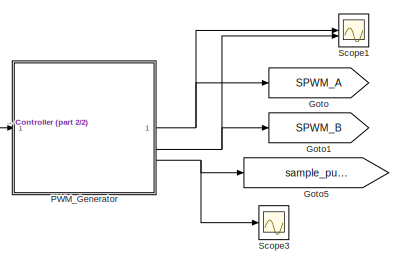
[diagram: root canvas - part 1/2, top right region]
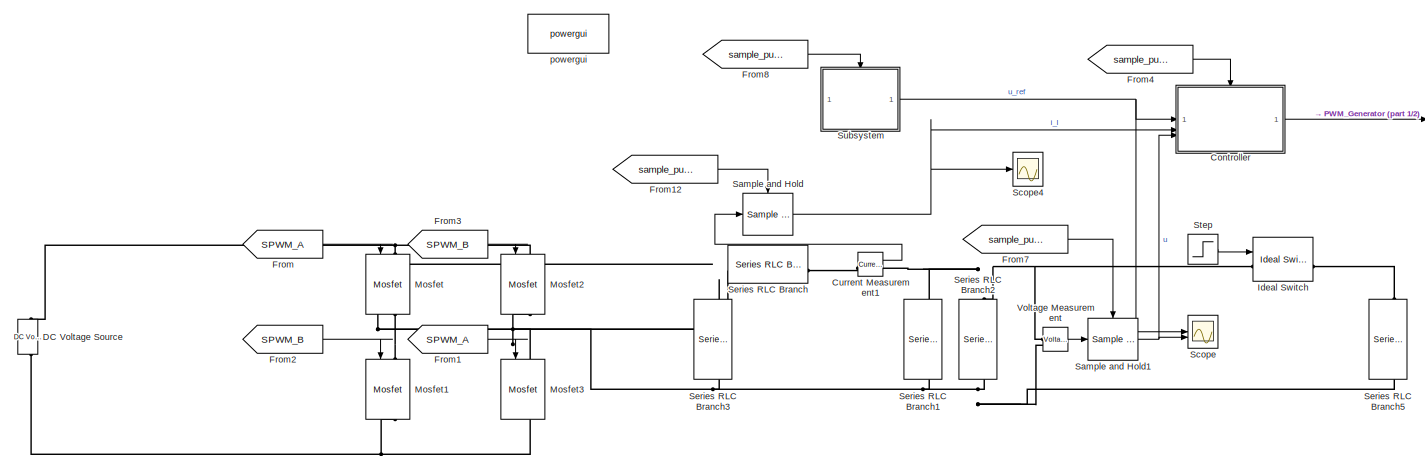
[diagram: root canvas - part 2/2, most of the canvas]
MODEL slx_2c31b23fbc62
KIND model
CONFIG AbsTol = auto
CONFIG EnableMultiTasking = off
CONFIG FixedStep = 1e-6
CONFIG MaxStep = 1e-8
CONFIG MinStep = auto
CONFIG RelTol = 1e-7
CONFIG SampleTimeConstraint = Unconstrained
CONFIG SolverName = ode23tb
CONFIG StartTime = 0.0
CONFIG StopTime = 0.2
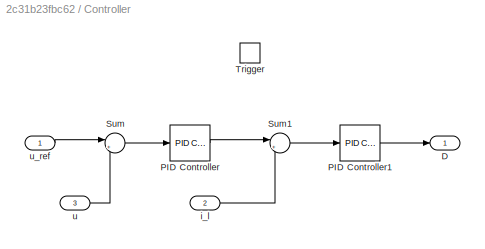
BLOCK [SubSystem] Controller
BLOCK [Outport] Controller/D
BLOCK [Reference] Controller/PID Controller  REF=slpidlib/PID Controller
  LibrarySourceBlock = simulink/Continuous/PID Controller
  SourceBlock = slpidlib/PID Controller
  SourceType = PID 1dof
BLOCK [Reference] Controller/PID Controller1  REF=slpidlib/PID Controller
  LibrarySourceBlock = simulink/Continuous/PID Controller
  SourceBlock = slpidlib/PID Controller
  SourceType = PID 1dof
BLOCK [Sum] Controller/Sum
  Inputs = |+-
BLOCK [Sum] Controller/Sum1
  Inputs = |+-
BLOCK [TriggerPort] Controller/Trigger
  StatesWhenEnabling = held
  VariantControl = (inherit)
BLOCK [Inport] Controller/i_l
  Port = 2
BLOCK [Inport] Controller/u
  Port = 3
BLOCK [Inport] Controller/u_ref
BLOCK [Reference] Current Measurement1  REF=spsCurrentMeasurementLib/Current Measurement
  LibrarySourceBlock = sps_lib/Sensors and Measurements/Current Measurement
  SourceBlock = spsCurrentMeasurementLib/Current Measurement
  SourceType = Current Measurement
  UserDataPersistent = on
BLOCK [Reference] DC Voltage Source  REF=spsDCVoltageSourceLib/DC Voltage Source
  LibrarySourceBlock = sps_lib/Sources/DC Voltage Source
  SourceBlock = spsDCVoltageSourceLib/DC Voltage Source
  SourceType = DC Voltage Source
BLOCK [From] From
  GotoTag = SPWM_A
BLOCK [From] From1
  GotoTag = SPWM_A
BLOCK [From] From12
  GotoTag = sample_pulse
BLOCK [From] From2
  GotoTag = SPWM_B
BLOCK [From] From3
  GotoTag = SPWM_B
BLOCK [From] From4
  GotoTag = sample_pulse
BLOCK [From] From7
  GotoTag = sample_pulse
BLOCK [From] From8
  GotoTag = sample_pulse
BLOCK [Goto] Goto
  GotoTag = SPWM_A
BLOCK [Goto] Goto1
  GotoTag = SPWM_B
BLOCK [Goto] Goto5
  GotoTag = sample_pulse
BLOCK [Reference] Ideal Switch  REF=spsIdealSwitchLib/Ideal Switch
  LibrarySourceBlock = sps_lib/Power Electronics/Ideal Switch
  SourceBlock = spsIdealSwitchLib/Ideal Switch
  SourceType = Ideal Switch
BLOCK [Reference] Mosfet  REF=spsMosfetLib/Mosfet
  LibrarySourceBlock = sps_lib/Power Electronics/Mosfet
  NameLocation = left
  SourceBlock = spsMosfetLib/Mosfet
  SourceType = Mosfet
BLOCK [Reference] Mosfet1  REF=spsMosfetLib/Mosfet
  LibrarySourceBlock = sps_lib/Power Electronics/Mosfet
  NameLocation = left
  SourceBlock = spsMosfetLib/Mosfet
  SourceType = Mosfet
BLOCK [Reference] Mosfet2  REF=spsMosfetLib/Mosfet
  LibrarySourceBlock = sps_lib/Power Electronics/Mosfet
  NameLocation = left
  SourceBlock = spsMosfetLib/Mosfet
  SourceType = Mosfet
BLOCK [Reference] Mosfet3  REF=spsMosfetLib/Mosfet
  LibrarySourceBlock = sps_lib/Power Electronics/Mosfet
  NameLocation = left
  SourceBlock = spsMosfetLib/Mosfet
  SourceType = Mosfet
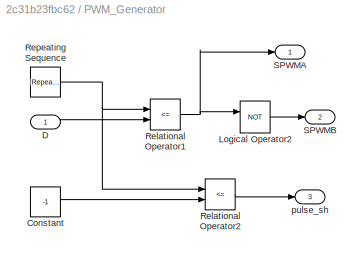
BLOCK [SubSystem] PWM_Generator
BLOCK [Constant] PWM_Generator/Constant
  Value = -1
BLOCK [Inport] PWM_Generator/D
BLOCK [Logic] PWM_Generator/Logical Operator2
  AllPortsSameDT = off
  Operator = NOT
  OutDataTypeStr = boolean
BLOCK [RelationalOperator] PWM_Generator/Relational Operator1
  InputSameDT = off
  Operator = <=
  OutDataTypeStr = boolean
  RndMeth = Simplest
BLOCK [RelationalOperator] PWM_Generator/Relational Operator2
  InputSameDT = off
  Operator = <=
  OutDataTypeStr = boolean
  RndMeth = Simplest
BLOCK [Reference] PWM_Generator/Repeating Sequence  REF=simulink/Sources/Repeating
Sequence
  SourceBlock = simulink/Sources/Repeating\nSequence
  SourceType = Repeating table
BLOCK [Outport] PWM_Generator/SPWMA
BLOCK [Outport] PWM_Generator/SPWMB
  Port = 2
BLOCK [Outport] PWM_Generator/pulse_sh
  Port = 3
BLOCK [Reference] Sample and Hold  REF=dspsigops/Sample
and Hold
  LibrarySourceBlock = dsphdlsupportsigops/Sample\nand Hold
  SourceBlock = dspsigops/Sample\nand Hold
  SourceType = Sample and Hold
BLOCK [Reference] Sample and Hold1  REF=dspsigops/Sample
and Hold
  LibrarySourceBlock = dsphdlsupportsigops/Sample\nand Hold
  SourceBlock = dspsigops/Sample\nand Hold
  SourceType = Sample and Hold
BLOCK [Scope] Scope
  Floating = off
  NumInputPorts = 2
  ScopeSpecificationString = Simulink.scopes.TimeScopeBlockCfg('CurrentConfiguration', extmgr.ConfigurationSet(extmgr.Configuration('Core','General UI',true,'FigureColor',[1 1 1]),extmgr.Configuration('Core','Source UI',true),extmgr.Configuration('Sources','WiredSimulink',true),extmgr.Configuration('Visuals','Time Domain',true,'SerializedDisplays',{struct('MinYLimReal','-15.00000','MaxYLimReal','15.00000','YLabelReal','','Min...<+2343ch>
BLOCK [Scope] Scope1
  Floating = off
  NumInputPorts = 2
  ScopeSpecificationString = Simulink.scopes.TimeScopeBlockCfg('CurrentConfiguration', extmgr.ConfigurationSet(extmgr.Configuration('Core','General UI',true,'FigureColor',[1 1 1]),extmgr.Configuration('Core','Source UI',true),extmgr.Configuration('Sources','WiredSimulink',true,'DataLoggingVariableName','ScopeData1'),extmgr.Configuration('Visuals','Time Domain',true,'SerializedDisplays',{struct('MinYLimReal','-0.01597','MaxYLi...<+2743ch>
BLOCK [Scope] Scope3
  Floating = off
  NumInputPorts = 1
  ScopeSpecificationString = Simulink.scopes.TimeScopeBlockCfg('CurrentConfiguration', extmgr.ConfigurationSet(extmgr.Configuration('Core','General UI',true,'FigureColor',[1 1 1]),extmgr.Configuration('Core','Source UI',true),extmgr.Configuration('Sources','WiredSimulink',true,'DataLoggingVariableName','ScopeData1'),extmgr.Configuration('Visuals','Time Domain',true,'SerializedDisplays',{struct('MinYLimReal','-0.02372','MaxYLi...<+2683ch>
BLOCK [Scope] Scope4
  Floating = off
  NumInputPorts = 1
  ScopeSpecificationString = Simulink.scopes.TimeScopeBlockCfg('CurrentConfiguration', extmgr.ConfigurationSet(extmgr.Configuration('Core','General UI',true,'FigureColor',[1 1 1]),extmgr.Configuration('Core','Source UI',true),extmgr.Configuration('Sources','WiredSimulink',true,'DataLoggingVariableName','ScopeData2'),extmgr.Configuration('Visuals','Time Domain',true,'SerializedDisplays',{struct('MinYLimReal','-47.91696','MaxYL...<+2376ch>
BLOCK [Reference] Series RLC Branch  REF=spsSeriesRLCBranchLib/Series RLC Branch
  LibrarySourceBlock = sps_lib/Passives/Series RLC Branch
  SourceBlock = spsSeriesRLCBranchLib/Series RLC Branch
  SourceType = Series RLC Branch
BLOCK [Reference] Series RLC Branch1  REF=spsSeriesRLCBranchLib/Series RLC Branch
  LibrarySourceBlock = sps_lib/Passives/Series RLC Branch
  NameLocation = left
  SourceBlock = spsSeriesRLCBranchLib/Series RLC Branch
  SourceType = Series RLC Branch
BLOCK [Reference] Series RLC Branch2  REF=spsSeriesRLCBranchLib/Series RLC Branch
  LibrarySourceBlock = sps_lib/Passives/Series RLC Branch
  NameLocation = left
  SourceBlock = spsSeriesRLCBranchLib/Series RLC Branch
  SourceType = Series RLC Branch
BLOCK [Reference] Series RLC Branch3  REF=spsSeriesRLCBranchLib/Series RLC Branch
  LibrarySourceBlock = sps_lib/Passives/Series RLC Branch
  NameLocation = left
  SourceBlock = spsSeriesRLCBranchLib/Series RLC Branch
  SourceType = Series RLC Branch
BLOCK [Reference] Series RLC Branch5  REF=spsSeriesRLCBranchLib/Series RLC Branch
  LibrarySourceBlock = sps_lib/Passives/Series RLC Branch
  NameLocation = left
  SourceBlock = spsSeriesRLCBranchLib/Series RLC Branch
  SourceType = Series RLC Branch
BLOCK [Step] Step
  SampleTime = 0
  Time = 0.5
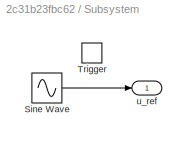
BLOCK [SubSystem] Subsystem
BLOCK [Sin] Subsystem/Sine Wave
  Amplitude = 12
  Frequency = 50*2*pi
BLOCK [TriggerPort] Subsystem/Trigger
  StatesWhenEnabling = held
  VariantControl = (inherit)
BLOCK [Outport] Subsystem/u_ref
BLOCK [Reference] Voltage Measurement  REF=spsVoltageMeasurementLib/Voltage Measurement
  LibrarySourceBlock = sps_lib/Sensors and Measurements/Voltage Measurement
  SourceBlock = spsVoltageMeasurementLib/Voltage Measurement
  SourceType = Voltage Measurement
  UserDataPersistent = on
BLOCK [Reference] powergui  REF=spspowerguiLib/powergui
  Priority = 1
  SourceBlock = spspowerguiLib/powergui
  SourceType = PSB option menu block
LINE Controller/PID Controller1:1 -> Controller/D:1
LINE Controller/PID Controller:1 -> Controller/Sum1:1
LINE Controller/Sum1:1 -> Controller/PID Controller1:1
LINE Controller/Sum:1 -> Controller/PID Controller:1
LINE Controller/i_l:1 -> Controller/Sum1:2
LINE Controller/u:1 -> Controller/Sum:2
LINE Controller/u_ref:1 -> Controller/Sum:1
LINE Controller:1 -> PWM_Generator:1
LINE Current Measurement1:1 -> Sample and Hold:1
LINE From12:1 -> Sample and Hold:trigger
LINE From1:1 -> Mosfet3:1
LINE From2:1 -> Mosfet1:1
LINE From3:1 -> Mosfet2:1
LINE From4:1 -> Controller:trigger
LINE From7:1 -> Sample and Hold1:trigger
LINE From8:1 -> Subsystem:trigger
LINE From:1 -> Mosfet:1
LINE PWM_Generator/Constant:1 -> PWM_Generator/Relational Operator2:2
LINE PWM_Generator/D:1 -> PWM_Generator/Relational Operator1:2
LINE PWM_Generator/Logical Operator2:1 -> PWM_Generator/SPWMB:1
NET PWM_Generator/Relational Operator1:1 -> PWM_Generator/Logical Operator2:1, PWM_Generator/SPWMA:1
LINE PWM_Generator/Relational Operator2:1 -> PWM_Generator/pulse_sh:1
NET PWM_Generator/Repeating Sequence:1 -> PWM_Generator/Relational Operator1:1, PWM_Generator/Relational Operator2:1
NET PWM_Generator:1 -> Goto:1, Scope1:1
NET PWM_Generator:2 -> Goto1:1, Scope1:2
NET PWM_Generator:3 -> Goto5:1, Scope3:1
NET Sample and Hold1:1 -> Controller:3, Scope:2
NET Sample and Hold:1 -> Controller:2, Scope4:1
LINE Step:1 -> Ideal Switch:1
LINE Subsystem/Sine Wave:1 -> Subsystem/u_ref:1
NET Subsystem:1 -> Controller:1, Scope:1
LINE Voltage Measurement:1 -> Sample and Hold1:1
PLINE Current Measurement1:LConn1 -- Series RLC Branch:RConn1
PNET net1: Current Measurement1:RConn1 -- Ideal Switch:LConn1 -- Series RLC Branch1:LConn1 -- Series RLC Branch2:LConn1 -- Voltage Measurement:LConn1
PNET net2: DC Voltage Source:LConn1 -- Mosfet1:RConn1 -- Mosfet3:RConn1
PNET net3: DC Voltage Source:RConn1 -- Mosfet2:LConn1 -- Mosfet:LConn1
PLINE Ideal Switch:RConn1 -- Series RLC Branch5:LConn1
PNET net4: Mosfet1:LConn1 -- Mosfet:RConn1 -- Series RLC Branch3:LConn1 -- Series RLC Branch:LConn1
PNET net5: Mosfet2:RConn1 -- Mosfet3:LConn1 -- Series RLC Branch1:RConn1 -- Series RLC Branch2:RConn1 -- Series RLC Branch3:RConn1 -- Series RLC Branch5:RConn1 -- Voltage Measurement:LConn2
note: NET lines group one-source signal fan-out (src -> all destinations, sorted); 1:1 wires keep LINE; PNET lines group multi-terminal physical nets as a canonical sorted terminal list (undirected conserving connections); 2-terminal nets keep the pairwise PLINE form
